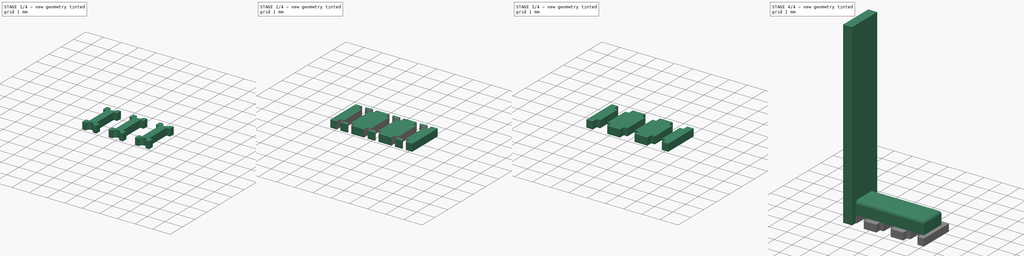
[diagram: build sequence overview — one tinted view per stage of 4, left to right]
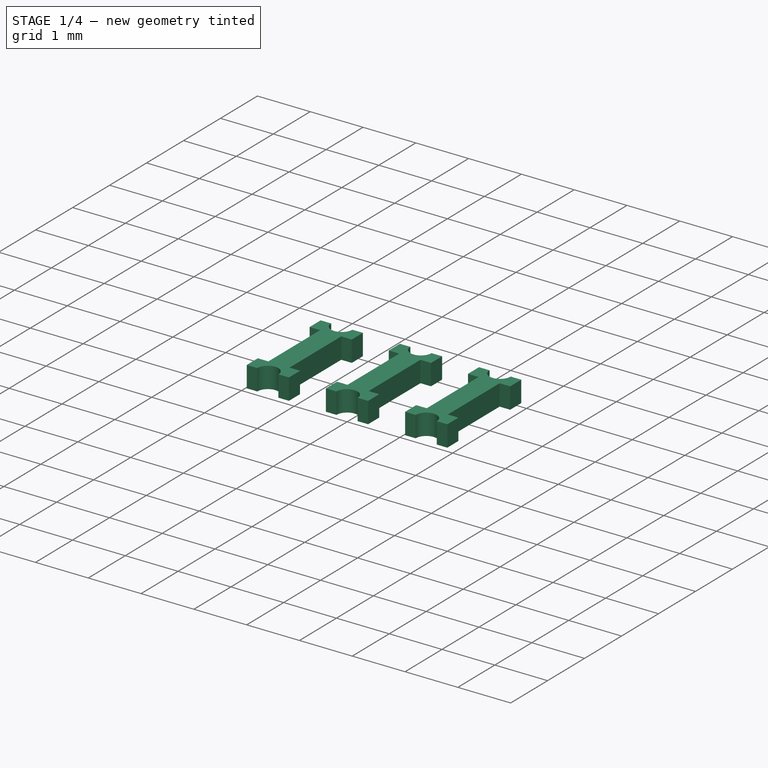
[diagram: stage 1 of 4 — iso view after this stage's code; geometry added in this stage tinted green]
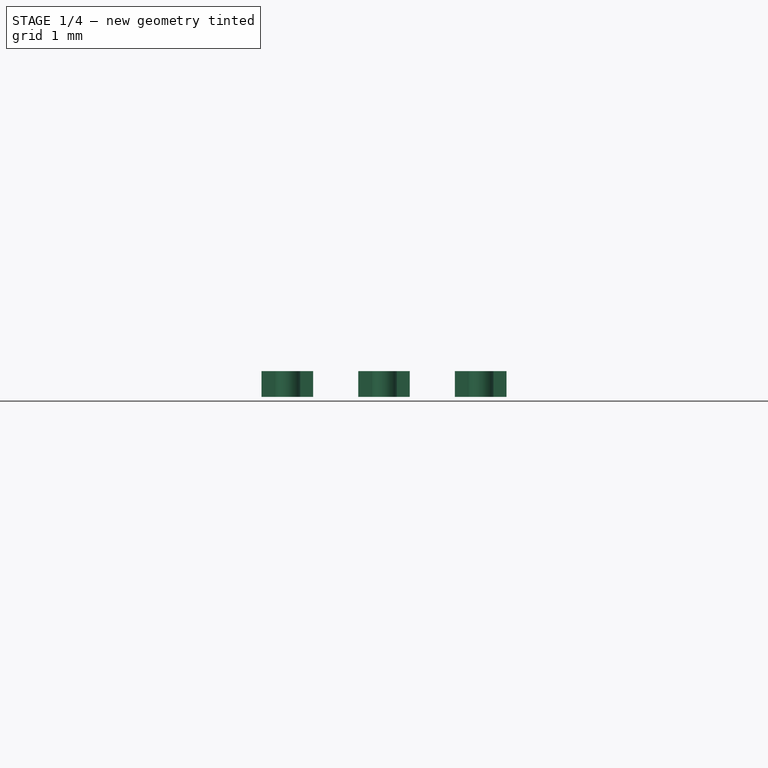
[diagram: stage 1 of 4 — front view after this stage's code; geometry added in this stage tinted green]
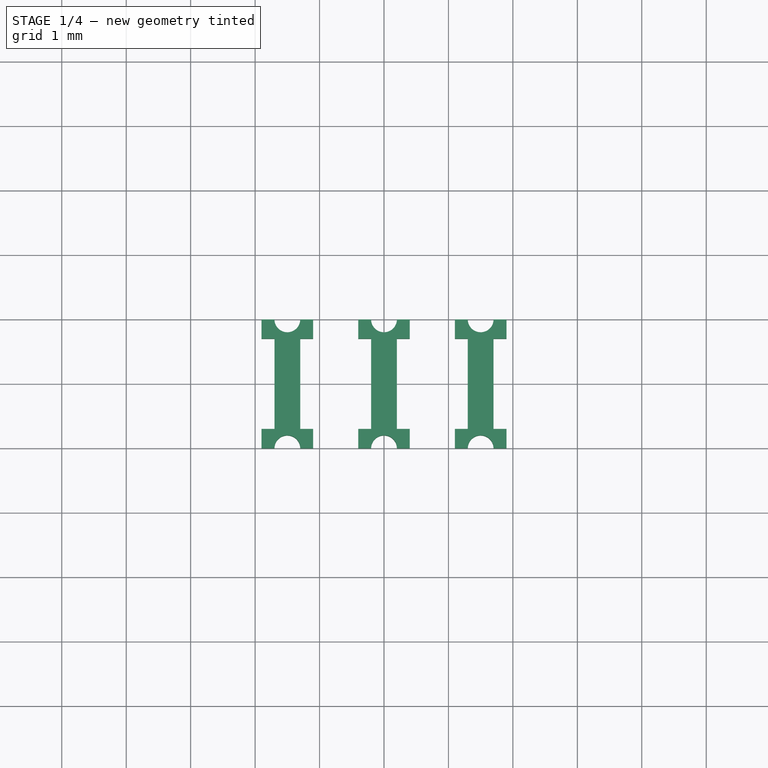
[diagram: stage 1 of 4 — top view after this stage's code; geometry added in this stage tinted green]
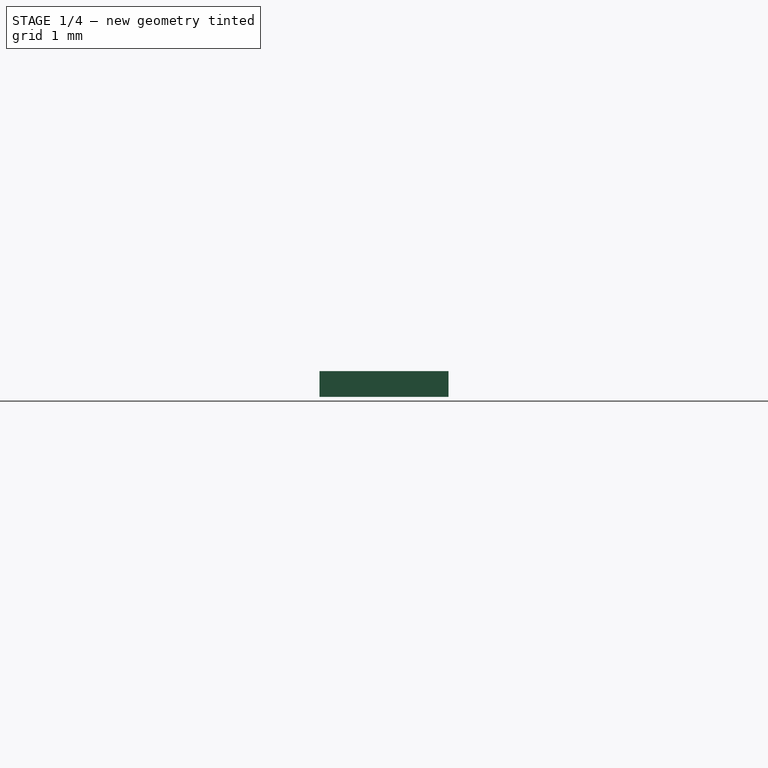
[diagram: stage 1 of 4 — right view after this stage's code; geometry added in this stage tinted green]
FCSTD DOCUMENT  (FreeCAD 0.17R13541 (Git))
Label: CSTCR4M19
License: All rights reserved
LicenseURL: http://en.wikipedia.org/wiki/All_rights_reserved
objects: Sketcher::SketchObject×5, Part::Extrusion×5, Part::Box×2, Part::Cut×2, Part::MultiFuse×1, Part::Fillet×1
note: 16 computed .brp shape members not serialized (recipe doc carries the construction recipe); baked Part::Feature solids carry a one-line shape summary decoded from their .brp

FEATURE [Sketcher::SketchObject] Sketch  label="pad2_sketch"
  sketch-geometry (16):
    g0: LineSegment StartX=-0.2 StartY=0.7 StartZ=0 EndX=-0.2 EndY=-0.7 EndZ=0
    g1: LineSegment StartX=-0.2 StartY=-0.7 StartZ=0 EndX=-0.4 EndY=-0.7 EndZ=0
    g2: LineSegment StartX=-0.4 StartY=-0.7 StartZ=0 EndX=-0.4 EndY=-1 EndZ=0
    g3: LineSegment StartX=-0.4 StartY=-1 StartZ=0 EndX=-0.2 EndY=-1 EndZ=0
    g4: LineSegment StartX=0.2 StartY=-1 StartZ=0 EndX=0.4 EndY=-1 EndZ=0
    g5: LineSegment StartX=0.4 StartY=-1 StartZ=0 EndX=0.4 EndY=-0.7 EndZ=0
    g6: LineSegment StartX=0.4 StartY=-0.7 StartZ=0 EndX=0.2 EndY=-0.7 EndZ=0
    g7: LineSegment StartX=0.2 StartY=-0.7 StartZ=0 EndX=0.2 EndY=0.7 EndZ=0
    g8: LineSegment StartX=0.2 StartY=0.7 StartZ=0 EndX=0.4 EndY=0.7 EndZ=0
    g9: LineSegment StartX=0.4 StartY=0.7 StartZ=0 EndX=0.4 EndY=1 EndZ=0
    g10: LineSegment StartX=0.4 StartY=1 StartZ=0 EndX=0.2 EndY=1 EndZ=0
    g11: LineSegment StartX=-0.2 StartY=1 StartZ=0 EndX=-0.4 EndY=1 EndZ=0
    g12: LineSegment StartX=-0.4 StartY=1 StartZ=0 EndX=-0.4 EndY=0.7 EndZ=0
    g13: LineSegment StartX=-0.4 StartY=0.7 StartZ=0 EndX=-0.2 EndY=0.7 EndZ=0
    g14: ArcOfCircle CenterX=0 CenterY=-1 CenterZ=0 NormalX=0 NormalY=0 NormalZ=1 AngleXU=0 Radius=0.2 StartAngle=0 EndAngle=3.14159
    g15: ArcOfCircle CenterX=0 CenterY=1 CenterZ=0 NormalX=0 NormalY=0 NormalZ=1 AngleXU=0 Radius=0.2 StartAngle=3.14159 EndAngle=6.28319
  constraints (44):
    c: Vertical(g0)
    c: Coincident(g0,g1)
    c: Horizontal(g1)
    c: Coincident(g1,g2)
    c: Coincident(g2,g3)
    c: Horizontal(g3)
    c: Horizontal(g4)
    c: Coincident(g4,g5)
    c: Vertical(g5)
    c: Coincident(g5,g6)
    c: Coincident(g6,g7)
    c: Vertical(g7)
    c: Coincident(g7,g8)
    c: Horizontal(g8)
    c: Coincident(g8,g9)
    c: Vertical(g9)
    c: Coincident(g9,g10)
    c: Horizontal(g10)
    c: Horizontal(g11)
    c: Coincident(g11,g12)
    c: Coincident(g12,g13)
    c: Coincident(g13,g0)
    c: Horizontal(g13)
    c: Vertical(g12)
    c: Vertical(g2)
    c: Horizontal(g6)
    c: Symmetric(g5,g1,g-2)
    c: Symmetric(g4,g10,g-1)
    c: Symmetric(g5,g8,g-1)
    c: Symmetric(g3,g4,g-2)
    c: Symmetric(g0,g7,g-2)
    c: Symmetric(g11,g3,g-1)
    c: Symmetric(g11,g9,g-2)
    c: Coincident(g14,g3)
    c: Coincident(g14,g4)
    c: Radius(g14) = 0.2
    c: DistanceX(g2,g4) = 0.8
    c: DistanceY(g2,g11) = 2
    c: Coincident(g15,g11)
    c: Coincident(g15,g10)
    c: Perpendicular(g14,g4)
    c: Perpendicular(g15,g11)
    c: DistanceY(g12,g11) = 0.3
    c: DistanceX(g0,g7) = 0.4
FEATURE [Part::Extrusion] Extrude  label="pad2"
  Base = -> Sketch
  Dir = (0,0,1)
  DirMode = 2
  FaceMakerClass = Part::FaceMakerBullseye
  LengthFwd = 0.4
  LengthRev = 0
  Solid = true
  Symmetric = false
FEATURE [Sketcher::SketchObject] Sketch001  label="pad1_sketch"
  Placement = pos=(1.5,0,0) rot=(0,0,1;0rad)
  sketch-geometry (16):
    g0: LineSegment StartX=-0.2 StartY=0.7 StartZ=0 EndX=-0.2 EndY=-0.7 EndZ=0
    g1: LineSegment StartX=-0.2 StartY=-0.7 StartZ=0 EndX=-0.4 EndY=-0.7 EndZ=0
    g2: LineSegment StartX=-0.4 StartY=-0.7 StartZ=0 EndX=-0.4 EndY=-1 EndZ=0
    g3: LineSegment StartX=-0.4 StartY=-1 StartZ=0 EndX=-0.2 EndY=-1 EndZ=0
    g4: LineSegment StartX=0.2 StartY=-1 StartZ=0 EndX=0.4 EndY=-1 EndZ=0
    g5: LineSegment StartX=0.4 StartY=-1 StartZ=0 EndX=0.4 EndY=-0.7 EndZ=0
    g6: LineSegment StartX=0.4 StartY=-0.7 StartZ=0 EndX=0.2 EndY=-0.7 EndZ=0
    g7: LineSegment StartX=0.2 StartY=-0.7 StartZ=0 EndX=0.2 EndY=0.7 EndZ=0
    g8: LineSegment StartX=0.2 StartY=0.7 StartZ=0 EndX=0.4 EndY=0.7 EndZ=0
    g9: LineSegment StartX=0.4 StartY=0.7 StartZ=0 EndX=0.4 EndY=1 EndZ=0
    g10: LineSegment StartX=0.4 StartY=1 StartZ=0 EndX=0.2 EndY=1 EndZ=0
    g11: LineSegment StartX=-0.2 StartY=1 StartZ=0 EndX=-0.4 EndY=1 EndZ=0
    g12: LineSegment StartX=-0.4 StartY=1 StartZ=0 EndX=-0.4 EndY=0.7 EndZ=0
    g13: LineSegment StartX=-0.4 StartY=0.7 StartZ=0 EndX=-0.2 EndY=0.7 EndZ=0
    g14: ArcOfCircle CenterX=0 CenterY=-1 CenterZ=0 NormalX=0 NormalY=0 NormalZ=1 AngleXU=0 Radius=0.2 StartAngle=0 EndAngle=3.14159
    g15: ArcOfCircle CenterX=0 CenterY=1 CenterZ=0 NormalX=0 NormalY=0 NormalZ=1 AngleXU=0 Radius=0.2 StartAngle=3.14159 EndAngle=6.28319
  constraints (44):
    c: Vertical(g0)
    c: Coincident(g0,g1)
    c: Horizontal(g1)
    c: Coincident(g1,g2)
    c: Coincident(g2,g3)
    c: Horizontal(g3)
    c: Horizontal(g4)
    c: Coincident(g4,g5)
    c: Vertical(g5)
    c: Coincident(g5,g6)
    c: Coincident(g6,g7)
    c: Vertical(g7)
    c: Coincident(g7,g8)
    c: Horizontal(g8)
    c: Coincident(g8,g9)
    c: Vertical(g9)
    c: Coincident(g9,g10)
    c: Horizontal(g10)
    c: Horizontal(g11)
    c: Coincident(g11,g12)
    c: Coincident(g12,g13)
    c: Coincident(g13,g0)
    c: Horizontal(g13)
    c: Vertical(g12)
    c: Vertical(g2)
    c: Horizontal(g6)
    c: Symmetric(g5,g1,g-2)
    c: Symmetric(g4,g10,g-1)
    c: Symmetric(g5,g8,g-1)
    c: Symmetric(g3,g4,g-2)
    c: Symmetric(g0,g7,g-2)
    c: Symmetric(g11,g3,g-1)
    c: Symmetric(g11,g9,g-2)
    c: Coincident(g14,g3)
    c: Coincident(g14,g4)
    c: Radius(g14) = 0.2
    c: DistanceX(g2,g4) = 0.8
    c: DistanceY(g2,g11) = 2
    c: Coincident(g15,g11)
    c: Coincident(g15,g10)
    c: Perpendicular(g14,g4)
    c: Perpendicular(g15,g11)
    c: DistanceY(g12,g11) = 0.3
    c: DistanceX(g0,g7) = 0.4
FEATURE [Sketcher::SketchObject] Sketch002  label="pad3_sketch"
  Placement = pos=(-1.5,0,0) rot=(0,0,1;0rad)
  sketch-geometry (16):
    g0: LineSegment StartX=-0.2 StartY=0.7 StartZ=0 EndX=-0.2 EndY=-0.7 EndZ=0
    g1: LineSegment StartX=-0.2 StartY=-0.7 StartZ=0 EndX=-0.4 EndY=-0.7 EndZ=0
    g2: LineSegment StartX=-0.4 StartY=-0.7 StartZ=0 EndX=-0.4 EndY=-1 EndZ=0
    g3: LineSegment StartX=-0.4 StartY=-1 StartZ=0 EndX=-0.2 EndY=-1 EndZ=0
    g4: LineSegment StartX=0.2 StartY=-1 StartZ=0 EndX=0.4 EndY=-1 EndZ=0
    g5: LineSegment StartX=0.4 StartY=-1 StartZ=0 EndX=0.4 EndY=-0.7 EndZ=0
    g6: LineSegment StartX=0.4 StartY=-0.7 StartZ=0 EndX=0.2 EndY=-0.7 EndZ=0
    g7: LineSegment StartX=0.2 StartY=-0.7 StartZ=0 EndX=0.2 EndY=0.7 EndZ=0
    g8: LineSegment StartX=0.2 StartY=0.7 StartZ=0 EndX=0.4 EndY=0.7 EndZ=0
    g9: LineSegment StartX=0.4 StartY=0.7 StartZ=0 EndX=0.4 EndY=1 EndZ=0
    g10: LineSegment StartX=0.4 StartY=1 StartZ=0 EndX=0.2 EndY=1 EndZ=0
    g11: LineSegment StartX=-0.2 StartY=1 StartZ=0 EndX=-0.4 EndY=1 EndZ=0
    g12: LineSegment StartX=-0.4 StartY=1 StartZ=0 EndX=-0.4 EndY=0.7 EndZ=0
    g13: LineSegment StartX=-0.4 StartY=0.7 StartZ=0 EndX=-0.2 EndY=0.7 EndZ=0
    g14: ArcOfCircle CenterX=0 CenterY=-1 CenterZ=0 NormalX=0 NormalY=0 NormalZ=1 AngleXU=0 Radius=0.2 StartAngle=0 EndAngle=3.14159
    g15: ArcOfCircle CenterX=0 CenterY=1 CenterZ=0 NormalX=0 NormalY=0 NormalZ=1 AngleXU=0 Radius=0.2 StartAngle=3.14159 EndAngle=6.28319
  constraints (44):
    c: Vertical(g0)
    c: Coincident(g0,g1)
    c: Horizontal(g1)
    c: Coincident(g1,g2)
    c: Coincident(g2,g3)
    c: Horizontal(g3)
    c: Horizontal(g4)
    c: Coincident(g4,g5)
    c: Vertical(g5)
    c: Coincident(g5,g6)
    c: Coincident(g6,g7)
    c: Vertical(g7)
    c: Coincident(g7,g8)
    c: Horizontal(g8)
    c: Coincident(g8,g9)
    c: Vertical(g9)
    c: Coincident(g9,g10)
    c: Horizontal(g10)
    c: Horizontal(g11)
    c: Coincident(g11,g12)
    c: Coincident(g12,g13)
    c: Coincident(g13,g0)
    c: Horizontal(g13)
    c: Vertical(g12)
    c: Vertical(g2)
    c: Horizontal(g6)
    c: Symmetric(g5,g1,g-2)
    c: Symmetric(g4,g10,g-1)
    c: Symmetric(g5,g8,g-1)
    c: Symmetric(g3,g4,g-2)
    c: Symmetric(g0,g7,g-2)
    c: Symmetric(g11,g3,g-1)
    c: Symmetric(g11,g9,g-2)
    c: Coincident(g14,g3)
    c: Coincident(g14,g4)
    c: Radius(g14) = 0.2
    c: DistanceX(g2,g4) = 0.8
    c: DistanceY(g2,g11) = 2
    c: Coincident(g15,g11)
    c: Coincident(g15,g10)
    c: Perpendicular(g14,g4)
    c: Perpendicular(g15,g11)
    c: DistanceY(g12,g11) = 0.3
    c: DistanceX(g0,g7) = 0.4
FEATURE [Part::Extrusion] Extrude001  label="pad1"
  Base = -> Sketch001
  Dir = (0,0,1)
  DirMode = 2
  FaceMakerClass = Part::FaceMakerBullseye
  LengthFwd = 0.4
  LengthRev = 0
  Solid = true
  Symmetric = false
FEATURE [Part::Extrusion] Extrude002  label="pad3"
  Base = -> Sketch002
  Dir = (0,0,1)
  DirMode = 2
  FaceMakerClass = Part::FaceMakerBullseye
  LengthFwd = 0.4
  LengthRev = 0
  Solid = true
  Symmetric = false
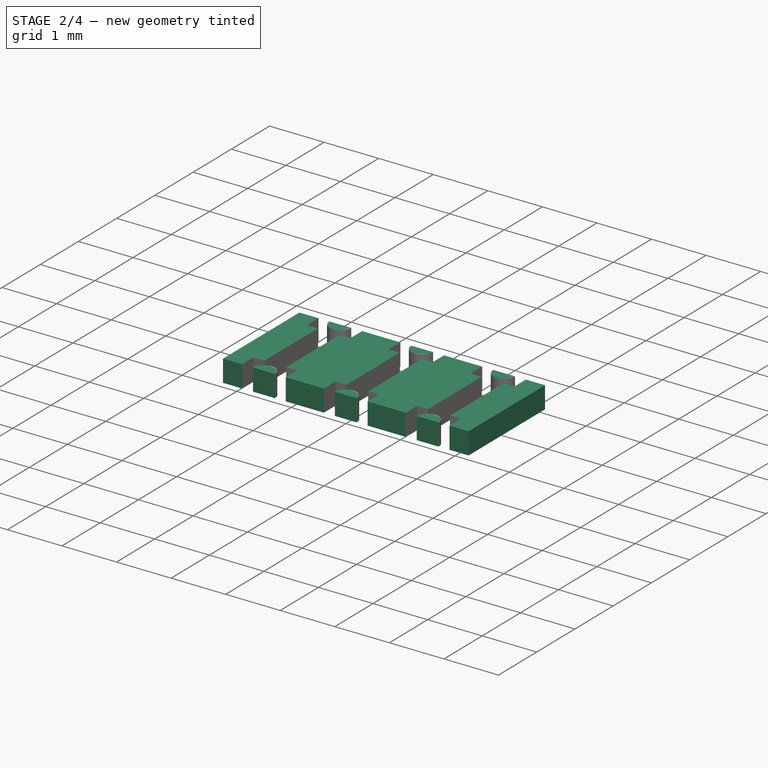
[diagram: stage 2 of 4 — iso view after this stage's code; geometry added in this stage tinted green]
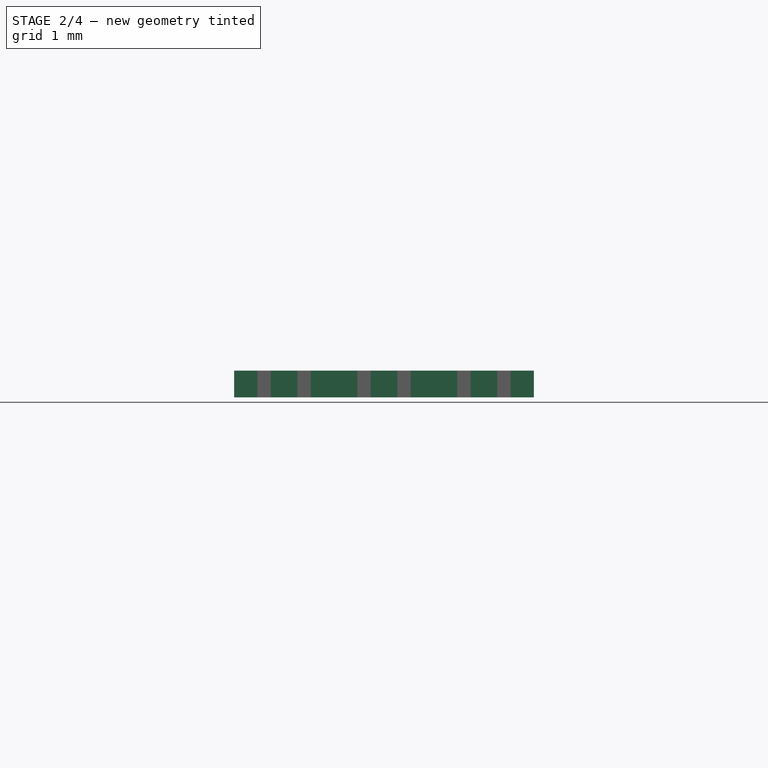
[diagram: stage 2 of 4 — front view after this stage's code; geometry added in this stage tinted green]
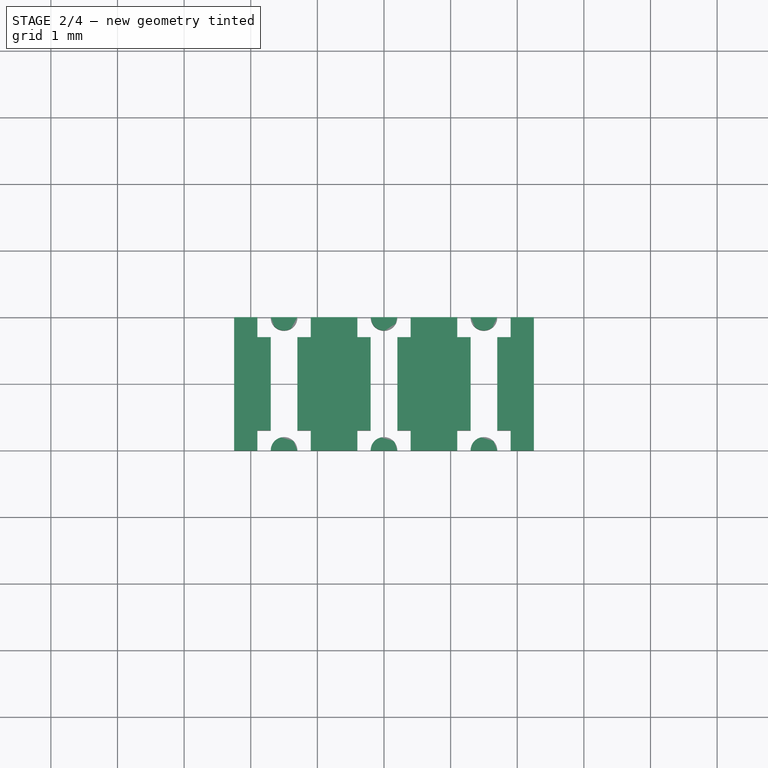
[diagram: stage 2 of 4 — top view after this stage's code; geometry added in this stage tinted green]
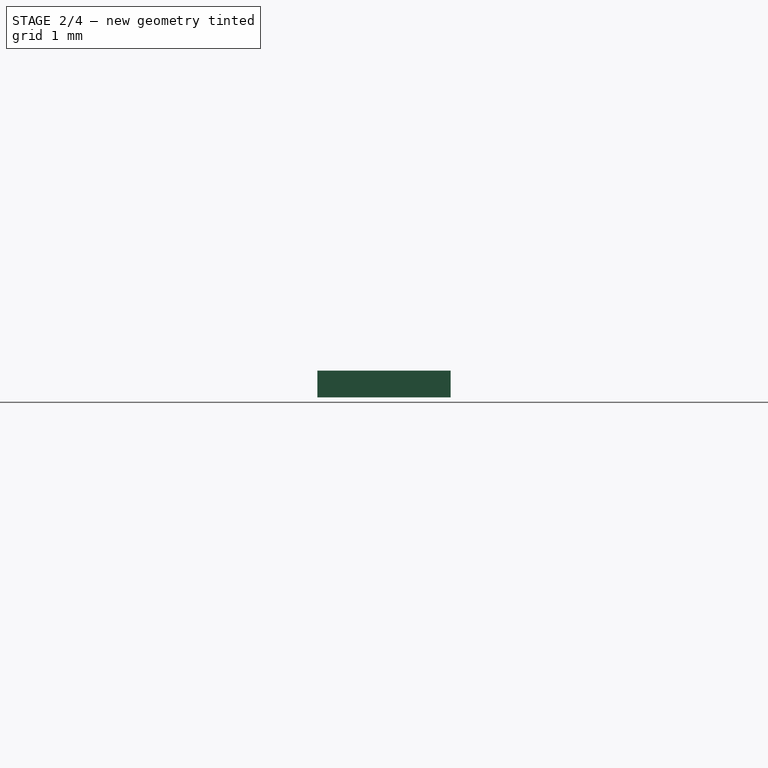
[diagram: stage 2 of 4 — right view after this stage's code; geometry added in this stage tinted green]
FEATURE [Part::Box] Box  label="base"
  AttacherType = Attacher::AttachEngine3D
  Height = 0.4
  Length = 4.5
  Placement = pos=(-2.25,-1,0) rot=(0,0,1;0rad)
  Width = 2
FEATURE [Part::MultiFuse] Fusion  label="pads"
  Shapes = -> [Extrude002,Extrude,Extrude001]
FEATURE [Part::Cut] Cut  label="base_cut"
  Base = -> Box
  Tool = -> Fusion
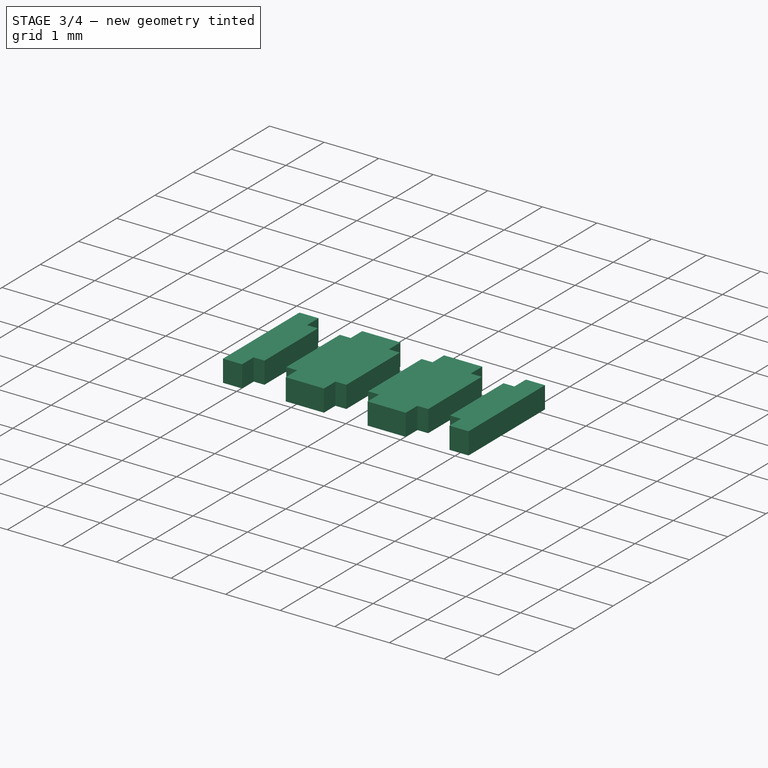
[diagram: stage 3 of 4 — iso view after this stage's code; geometry added in this stage tinted green]
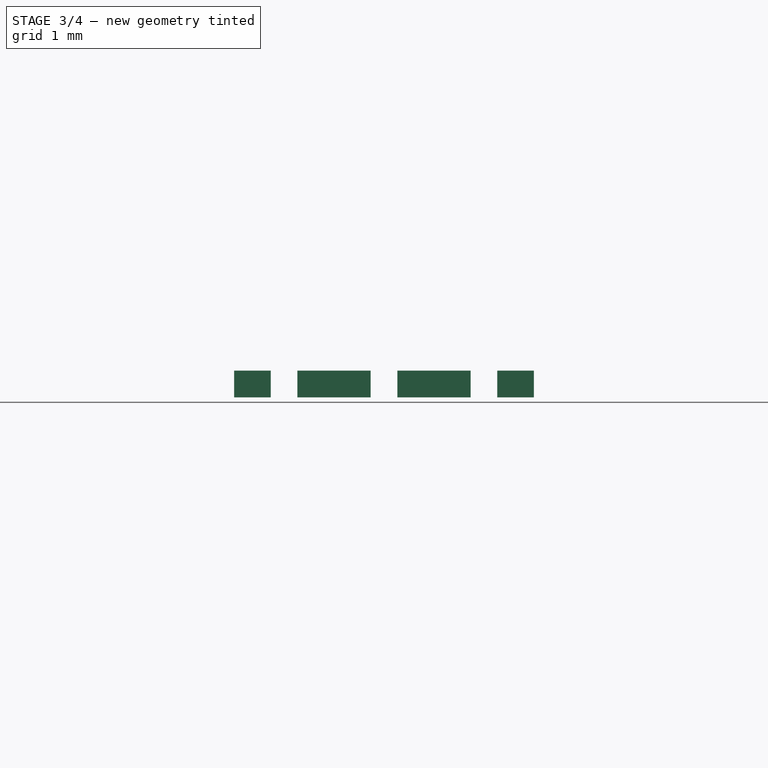
[diagram: stage 3 of 4 — front view after this stage's code; geometry added in this stage tinted green]
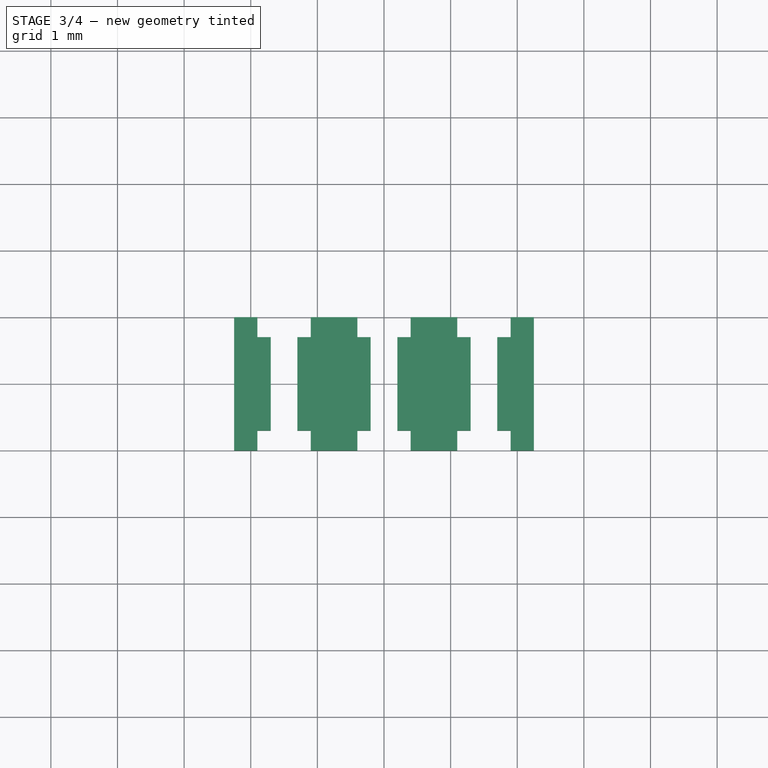
[diagram: stage 3 of 4 — top view after this stage's code; geometry added in this stage tinted green]
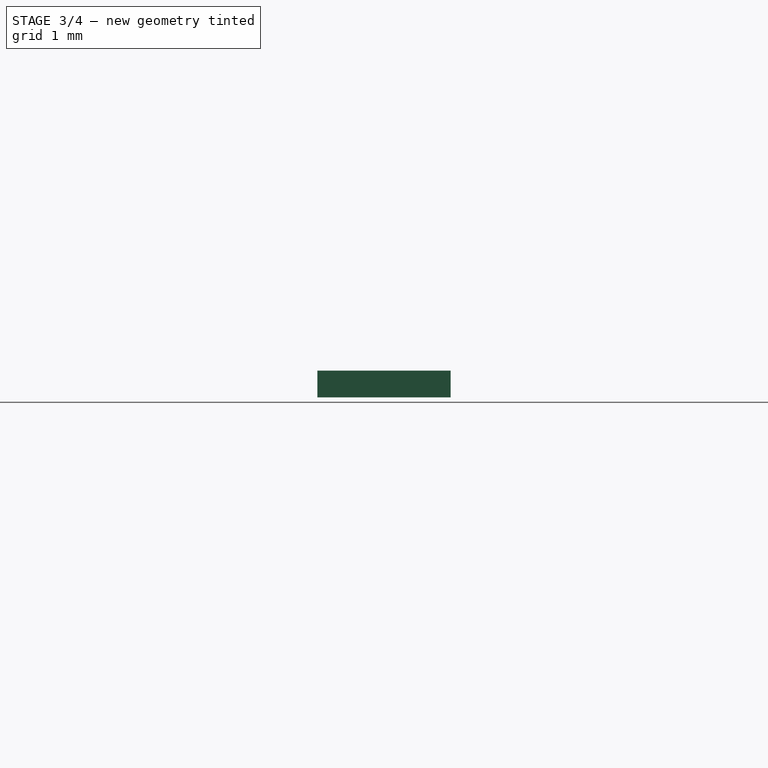
[diagram: stage 3 of 4 — right view after this stage's code; geometry added in this stage tinted green]
FEATURE [Sketcher::SketchObject] Sketch004  label="delete_holes_sketch"
  MapMode = 2
  Support = -> [Cut]
  sketch-geometry (24):
    g0: LineSegment StartX=-1.77 StartY=-1.03 StartZ=0 EndX=-1.27 EndY=-1.03 EndZ=0
    g1: LineSegment StartX=-1.27 StartY=-1.03 StartZ=0 EndX=-1.27 EndY=-0.78 EndZ=0
    g2: LineSegment StartX=-1.27 StartY=-0.78 StartZ=0 EndX=-1.77 EndY=-0.78 EndZ=0
    g3: LineSegment StartX=-1.77 StartY=-0.78 StartZ=0 EndX=-1.77 EndY=-1.03 EndZ=0
    g4: LineSegment StartX=-1.77 StartY=1.03 StartZ=0 EndX=-1.27 EndY=1.03 EndZ=0
    g5: LineSegment StartX=-1.27 StartY=1.03 StartZ=0 EndX=-1.27 EndY=0.78 EndZ=0
    g6: LineSegment StartX=-1.27 StartY=0.78 StartZ=0 EndX=-1.77 EndY=0.78 EndZ=0
    g7: LineSegment StartX=-1.77 StartY=0.78 StartZ=0 EndX=-1.77 EndY=1.03 EndZ=0
    g8: LineSegment StartX=-0.25 StartY=1.02 StartZ=0 EndX=0.25 EndY=1.02 EndZ=0
    g9: LineSegment StartX=0.25 StartY=1.02 StartZ=0 EndX=0.25 EndY=0.77 EndZ=0
    g10: LineSegment StartX=0.25 StartY=0.77 StartZ=0 EndX=-0.25 EndY=0.77 EndZ=0
    g11: LineSegment StartX=-0.25 StartY=0.77 StartZ=0 EndX=-0.25 EndY=1.02 EndZ=0
    g12: LineSegment StartX=-0.25 StartY=-0.77 StartZ=0 EndX=0.25 EndY=-0.77 EndZ=0
    g13: LineSegment StartX=0.25 StartY=-0.77 StartZ=0 EndX=0.25 EndY=-1.02 EndZ=0
    g14: LineSegment StartX=0.25 StartY=-1.02 StartZ=0 EndX=-0.25 EndY=-1.02 EndZ=0
    g15: LineSegment StartX=-0.25 StartY=-1.02 StartZ=0 EndX=-0.25 EndY=-0.77 EndZ=0
    g16: LineSegment StartX=1.27 StartY=-0.78 StartZ=0 EndX=1.77 EndY=-0.78 EndZ=0
    g17: LineSegment StartX=1.77 StartY=-0.78 StartZ=0 EndX=1.77 EndY=-1.03 EndZ=0
    g18: LineSegment StartX=1.77 StartY=-1.03 StartZ=0 EndX=1.27 EndY=-1.03 EndZ=0
    g19: LineSegment StartX=1.27 StartY=-1.03 StartZ=0 EndX=1.27 EndY=-0.78 EndZ=0
    g20: LineSegment StartX=1.27 StartY=1.03 StartZ=0 EndX=1.77 EndY=1.03 EndZ=0
    g21: LineSegment StartX=1.77 StartY=1.03 StartZ=0 EndX=1.77 EndY=0.78 EndZ=0
    g22: LineSegment StartX=1.77 StartY=0.78 StartZ=0 EndX=1.27 EndY=0.78 EndZ=0
    g23: LineSegment StartX=1.27 StartY=0.78 StartZ=0 EndX=1.27 EndY=1.03 EndZ=0
  constraints (64):
    c: Coincident(g0,g1)
    c: Coincident(g1,g2)
    c: Coincident(g2,g3)
    c: Coincident(g3,g0)
    c: Horizontal(g0)
    c: Horizontal(g2)
    c: Vertical(g1)
    c: Vertical(g3)
    c: Coincident(g4,g5)
    c: Coincident(g5,g6)
    c: Coincident(g6,g7)
    c: Coincident(g7,g4)
    c: Horizontal(g4)
    c: Horizontal(g6)
    c: Vertical(g5)
    c: Vertical(g7)
    c: Coincident(g8,g9)
    c: Coincident(g9,g10)
    c: Coincident(g10,g11)
    c: Coincident(g11,g8)
    c: Horizontal(g8)
    c: Horizontal(g10)
    c: Vertical(g9)
    c: Vertical(g11)
    c: Coincident(g12,g13)
    c: Coincident(g13,g14)
    c: Coincident(g14,g15)
    c: Coincident(g15,g12)
    c: Horizontal(g12)
    c: Horizontal(g14)
    c: Vertical(g13)
    c: Vertical(g15)
    c: Coincident(g16,g17)
    c: Coincident(g17,g18)
    c: Coincident(g18,g19)
    c: Coincident(g19,g16)
    c: Horizontal(g16)
    c: Horizontal(g18)
    c: Vertical(g17)
    c: Vertical(g19)
    c: Coincident(g20,g21)
    c: Coincident(g21,g22)
    c: Coincident(g22,g23)
    c: Coincident(g23,g20)
    c: Horizontal(g20)
    c: Horizontal(g22)
    c: Vertical(g21)
    c: Vertical(g23)
    c: Symmetric(g16,g1,g-2)
    c: Symmetric(g17,g0,g-2)
    c: Symmetric(g13,g8,g-1)
    c: Symmetric(g12,g10,g-1)
    c: Symmetric(g22,g5,g-2)
    c: Symmetric(g20,g4,g-2)
    c: Symmetric(g16,g22,g-1)
    c: Symmetric(g17,g20,g-1)
    c: DistanceY(g18,g16) = 0.25
    c: DistanceX(g18,g17) = 0.5
    c: DistanceX(g-1,g18) = 1.27
    c: DistanceY(g16,g-1) = 0.78
    c: DistanceY(g14,g12) = 0.25
    c: DistanceX(g12,g12) = 0.5
    c: DistanceY(g12,g-1) = 0.77
    c: DistanceX(g14,g-1) = 0.25
FEATURE [Part::Extrusion] Extrude004  label="delete_holes"
  Base = -> Sketch004
  Dir = (0,0,1)
  DirMode = 2
  FaceMakerClass = Part::FaceMakerBullseye
  LengthFwd = 0.4
  LengthRev = 0
  Solid = true
  Symmetric = false
FEATURE [Part::Cut] Cut001  label="base_cut2"
  Base = -> Cut
  Tool = -> Extrude004
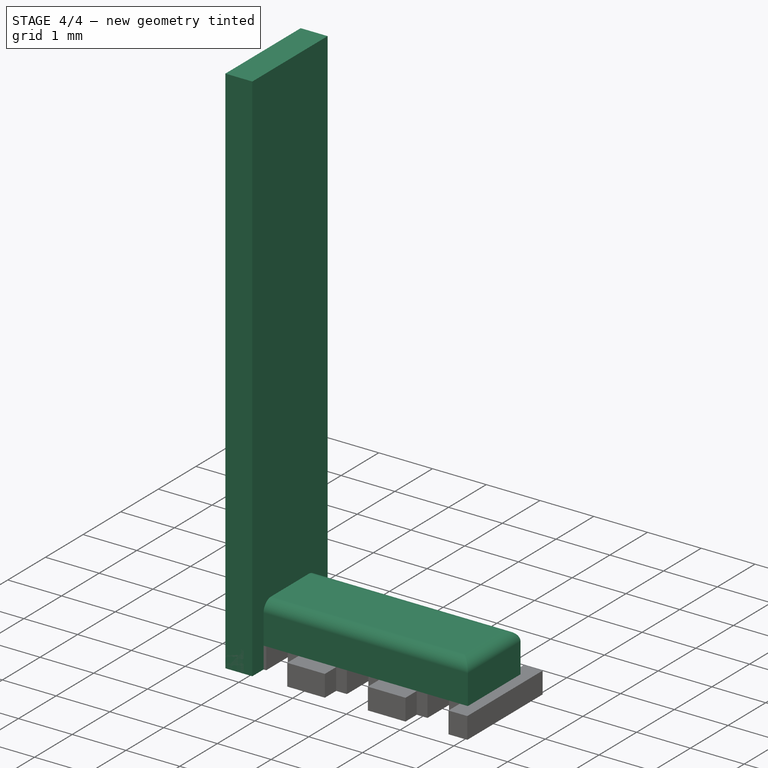
[diagram: stage 4 of 4 — iso view after this stage's code; geometry added in this stage tinted green]
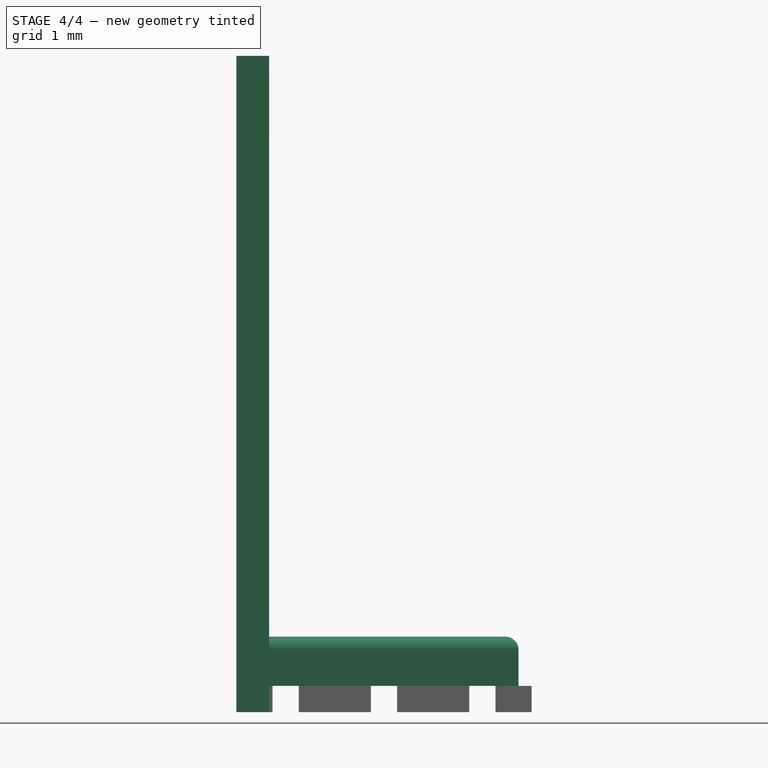
[diagram: stage 4 of 4 — front view after this stage's code; geometry added in this stage tinted green]
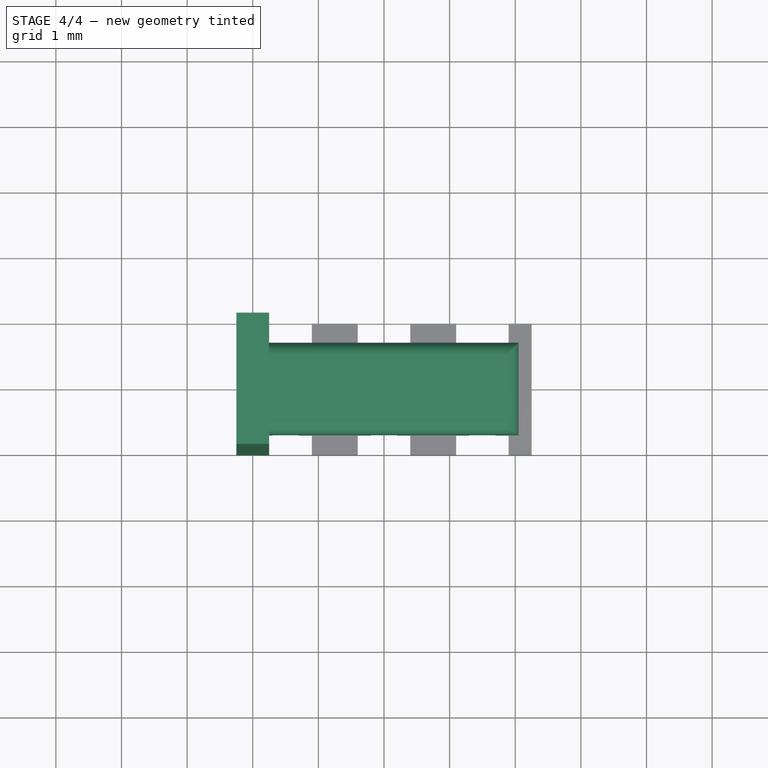
[diagram: stage 4 of 4 — top view after this stage's code; geometry added in this stage tinted green]
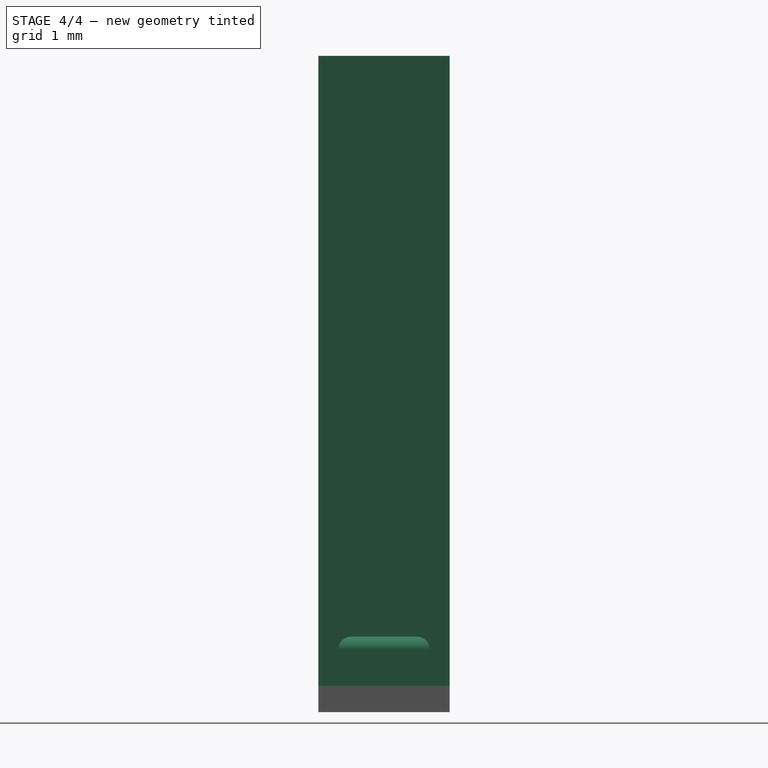
[diagram: stage 4 of 4 — right view after this stage's code; geometry added in this stage tinted green]
FEATURE [Sketcher::SketchObject] Sketch003  label="lid_sketch"
  sketch-geometry (4):
    g0: LineSegment StartX=-2.05 StartY=0.7 StartZ=0 EndX=2.05 EndY=0.7 EndZ=0
    g1: LineSegment StartX=2.05 StartY=0.7 StartZ=0 EndX=2.05 EndY=-0.7 EndZ=0
    g2: LineSegment StartX=2.05 StartY=-0.7 StartZ=0 EndX=-2.05 EndY=-0.7 EndZ=0
    g3: LineSegment StartX=-2.05 StartY=-0.7 StartZ=0 EndX=-2.05 EndY=0.7 EndZ=0
  constraints (12):
    c: Coincident(g0,g1)
    c: Coincident(g1,g2)
    c: Coincident(g2,g3)
    c: Coincident(g3,g0)
    c: Horizontal(g0)
    c: Horizontal(g2)
    c: Vertical(g1)
    c: Vertical(g3)
    c: Symmetric(g2,g1,g-2)
    c: Symmetric(g1,g0,g-1)
    c: DistanceY(g1,g0) = 1.4
    c: DistanceX(g0,g0) = 4.1
FEATURE [Part::Extrusion] Extrude003  label="lid_raw"
  Base = -> Sketch003
  Dir = (0,0,1)
  DirMode = 2
  FaceMakerClass = Part::FaceMakerBullseye
  LengthFwd = 0.75
  LengthRev = 0
  Placement = pos=(0,0,0.4) rot=(0,0,1;0rad)
  Solid = true
  Symmetric = false
FEATURE [Part::Fillet] Fillet  label="lid"
  Base = -> Extrude003
  Edges = 4 edges r=0.2: [Edge4,Edge7,Edge10,Edge12]
FEATURE [Part::Box] Box001  label="Cube"
  AttacherType = Attacher::AttachEngine3D
  Height = 10
  Length = 0.5
  Placement = pos=(-2.25,-1,0) rot=(0,0,1;0rad)
  Width = 2
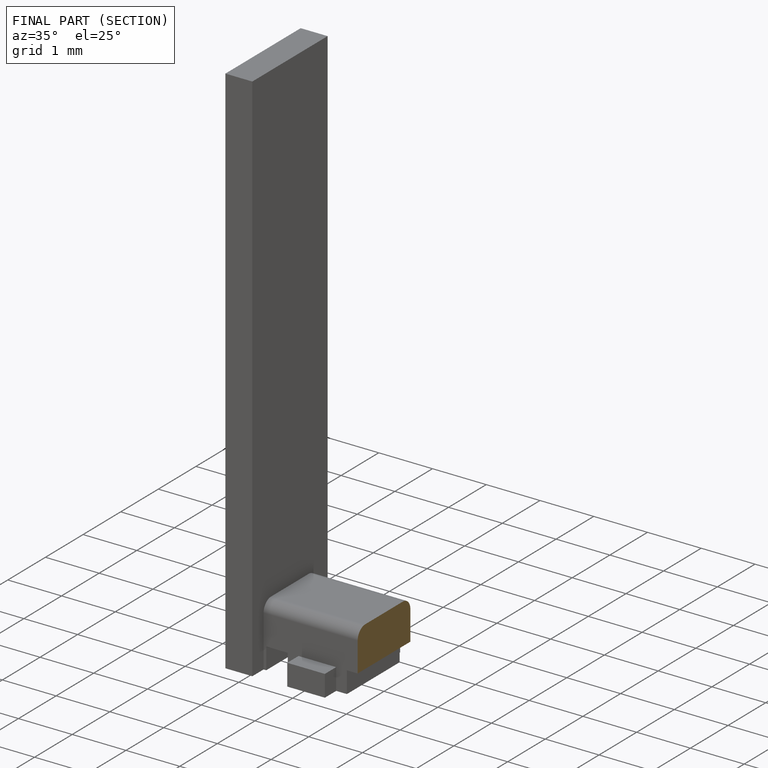
[diagram: finished part — half-section view (interior)]
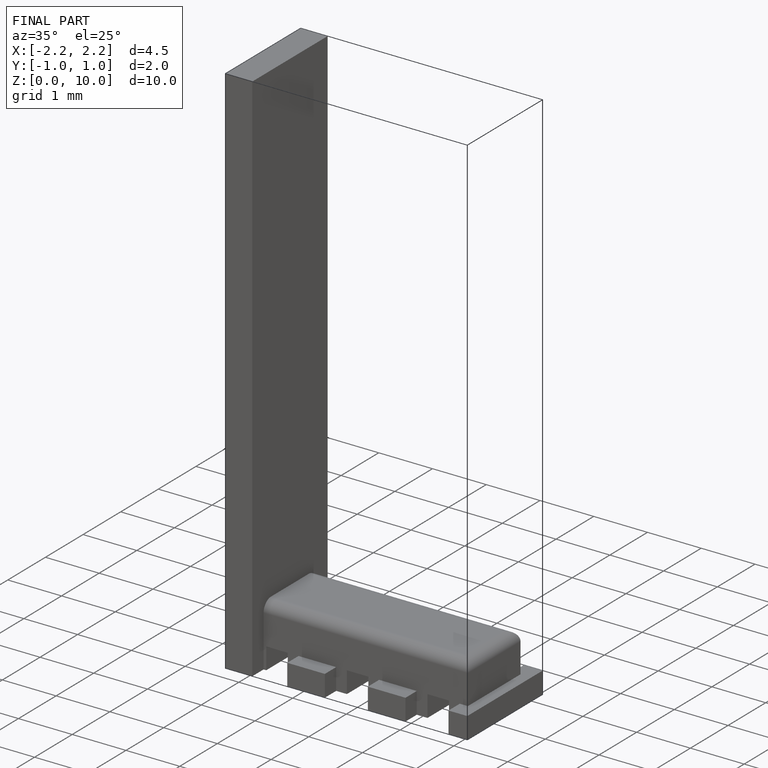
[diagram: finished part — iso view with bounding-box wireframe]
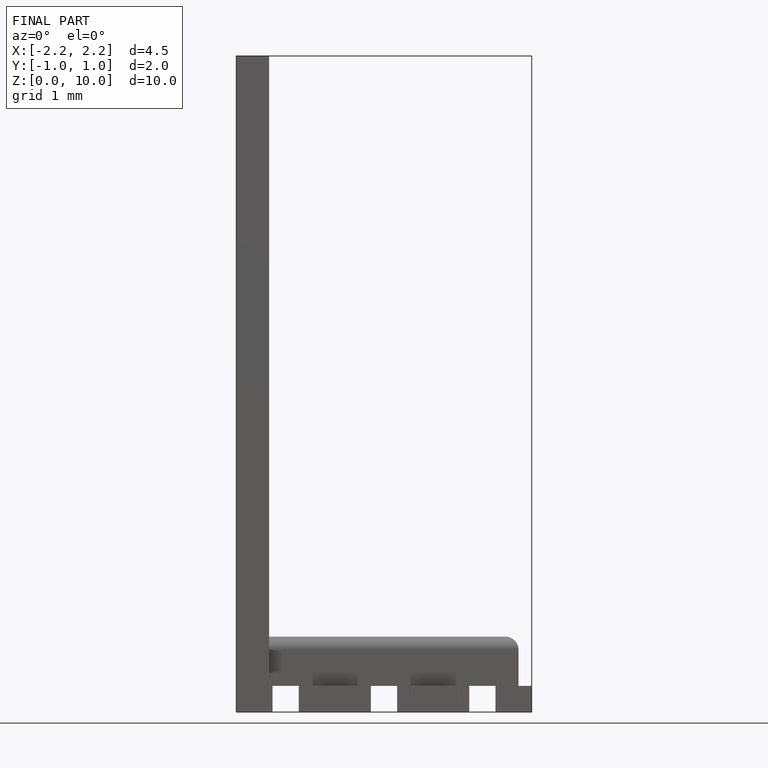
[diagram: finished part — front view with bounding-box wireframe]
